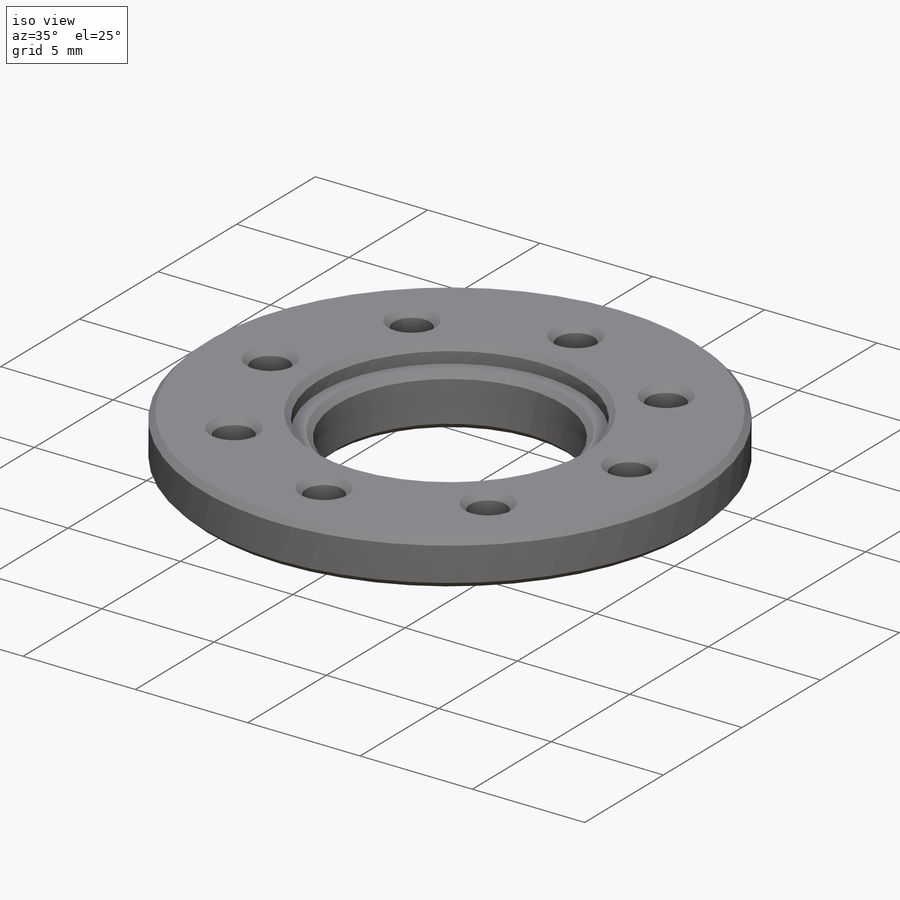
[diagram: iso view]
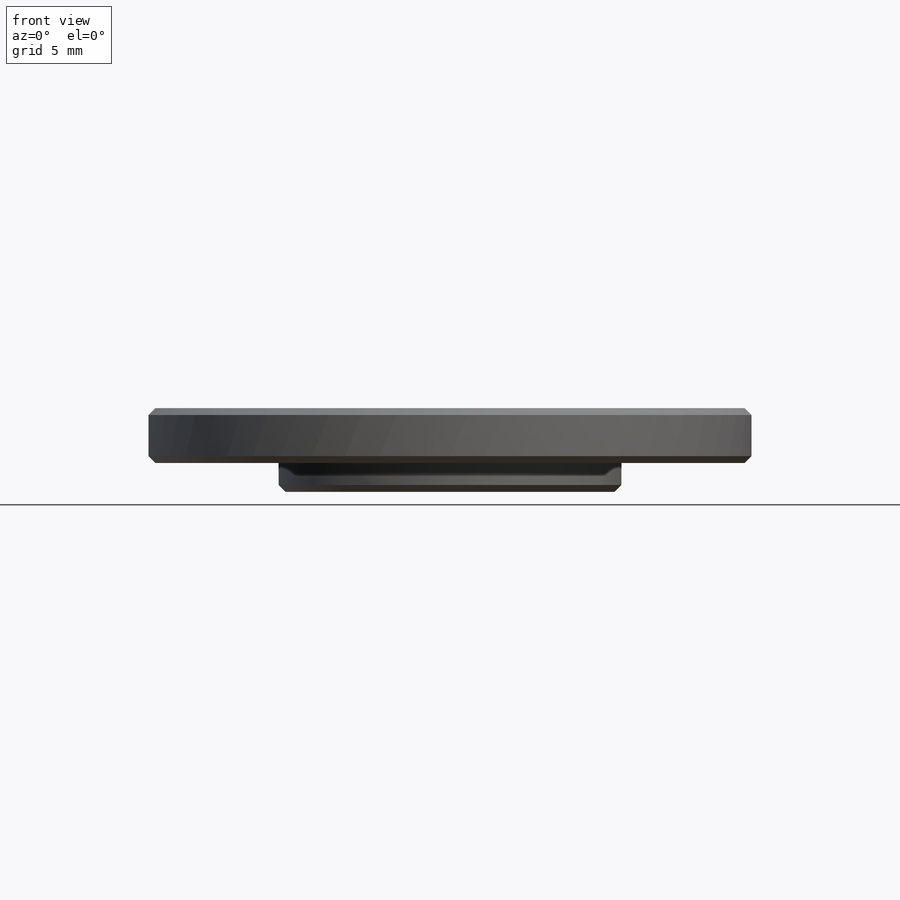
[diagram: front view]
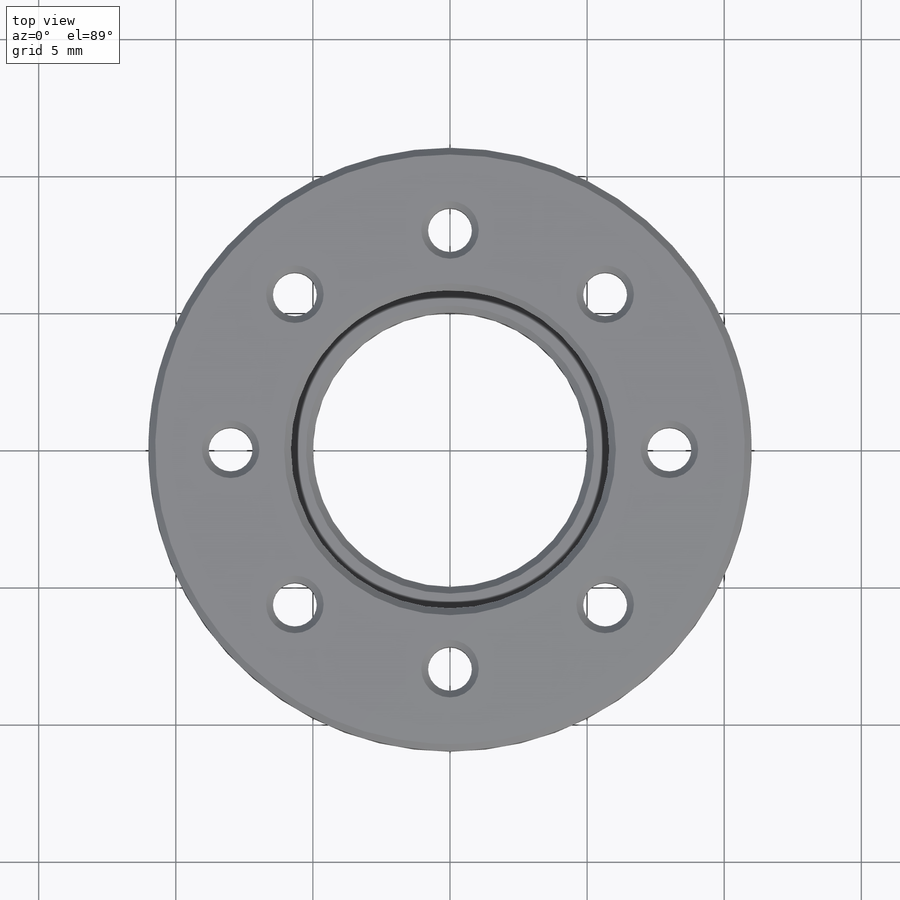
[diagram: top view]
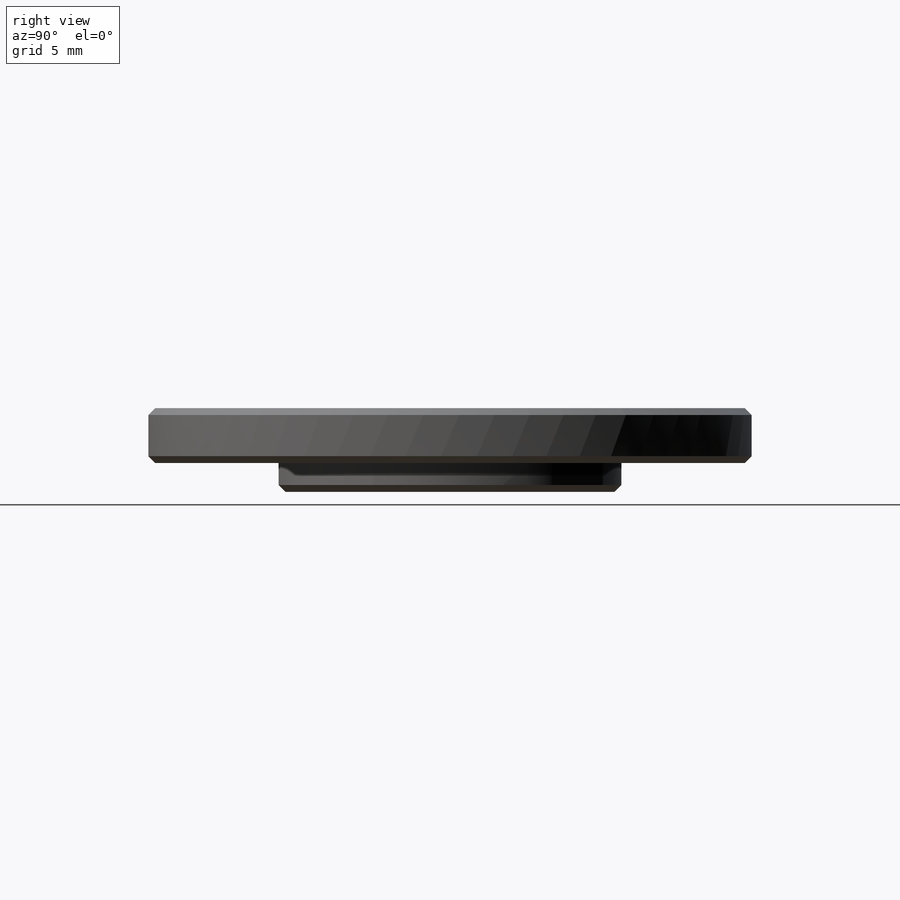
[diagram: right view]
SOLIDWORKS PART (.sldprt)
format: sldprt  version: not decoded by parser v0  size: 233,472 bytes
history: native  units: mm
features: sketch x6, hole x2, material x1, revolve x1, extrude x1, chamfer x1 (+12 scaffold rows collapsed)
feature tree (24):
  scaffold x12  (default folders/planes/origin — collapsed)
  material  "Aluminium"
  sketch  "Sketch1"
  revolve  "Revolve1"  Angle=360deg
  sketch  "Sketch2"
  extrude  "Boss-Extrude1"  Depth=1.05mm
  hole  "Ø1.6 (1.6) Diameter Hole1"  Diameter=1.6mm Depth=3.05mm
  sketch  "Sketch4"
  sketch  "Sketch3"  dims[hole-wizard template sketch: 60 standard entries collapsed; hole parameters kept: c18.Thru Hole Depth=3.05mm]
  hole  "CBORE for M8 Hex Head Bolt1"  Diameter=10mm Depth=3.05mm
  sketch  "Sketch6"
  sketch  "Sketch5"  dims[hole-wizard template sketch: 41 standard entries collapsed; hole parameters kept: c12.Thru Hole Dia.=10.0mm c12.Thru Hole Depth=3.05mm c12.C'Bore Dia.=11.6mm c12.C'Bore Depth=0.75mm]
  chamfer  "Chamfer1"  Distance=0.25mm Angle=45deg
decode coverage: 7 of 11 modeling features carry decoded parameters
note: ~ marks probable driven/reference dimensions
note: suppression state not decoded; provenance and decode notes live in map.json
